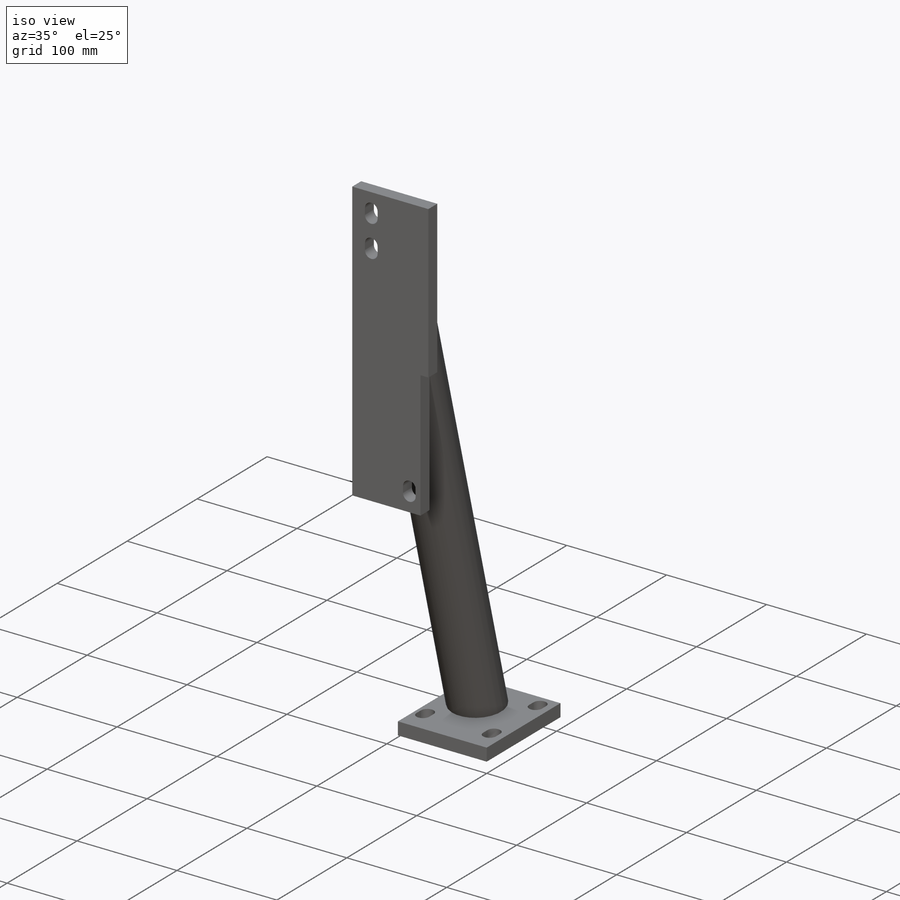
[diagram: iso view]
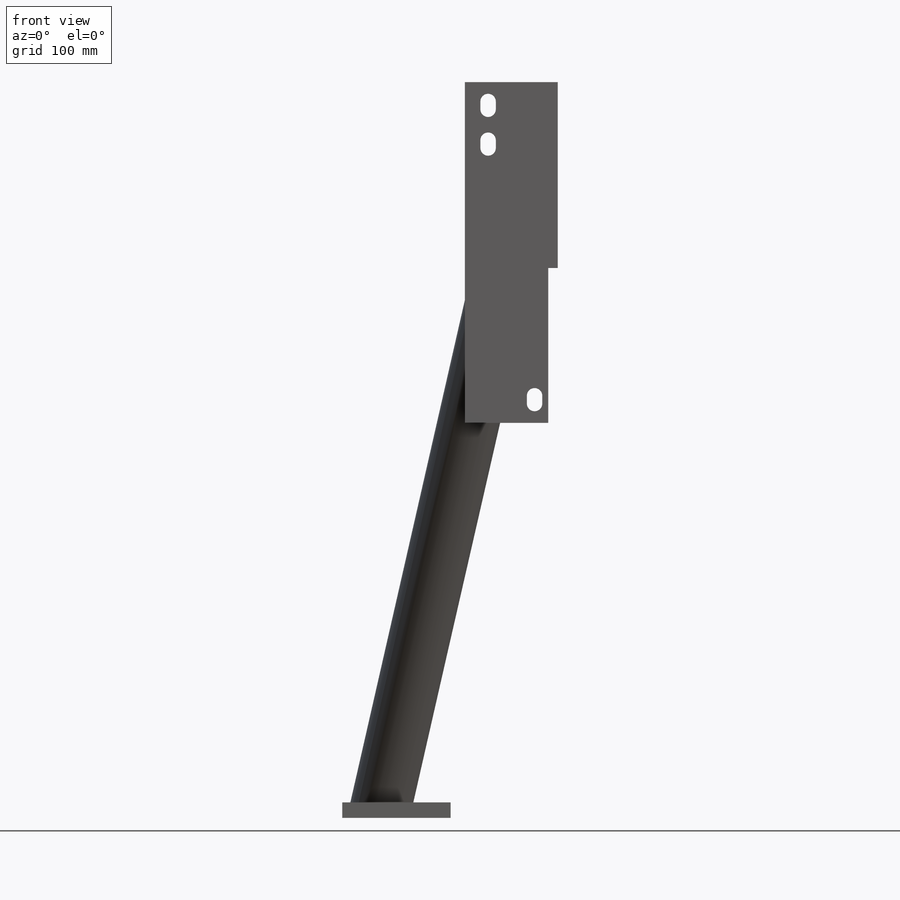
[diagram: front view]
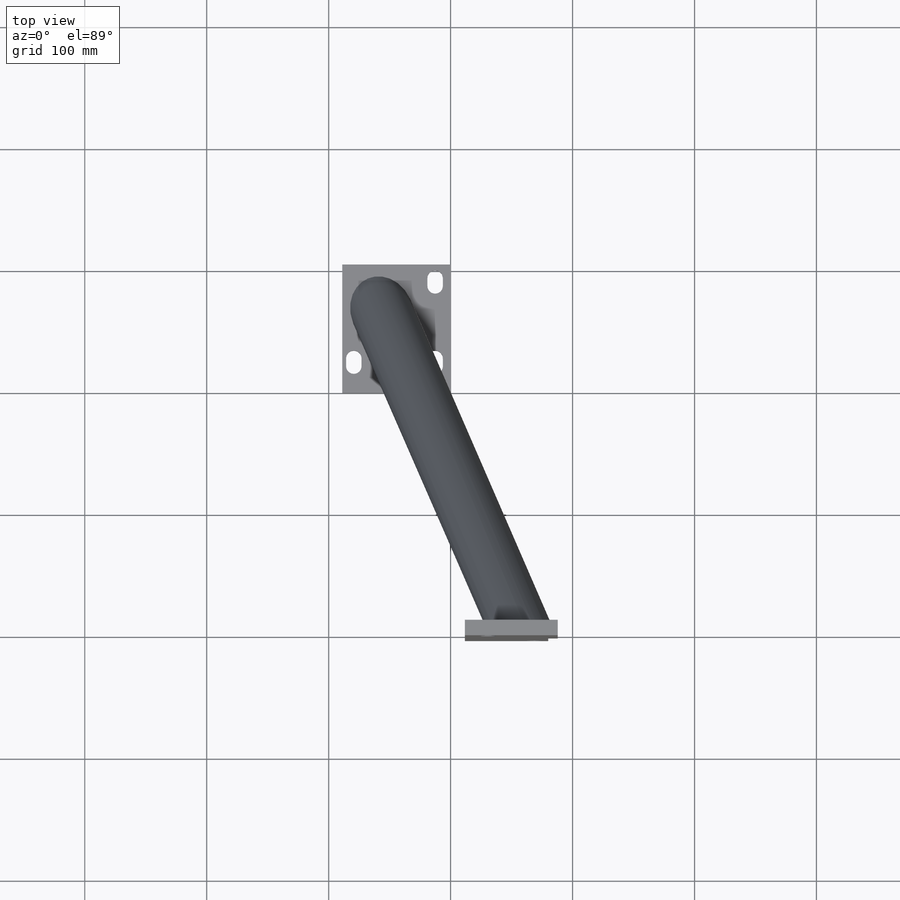
[diagram: top view]
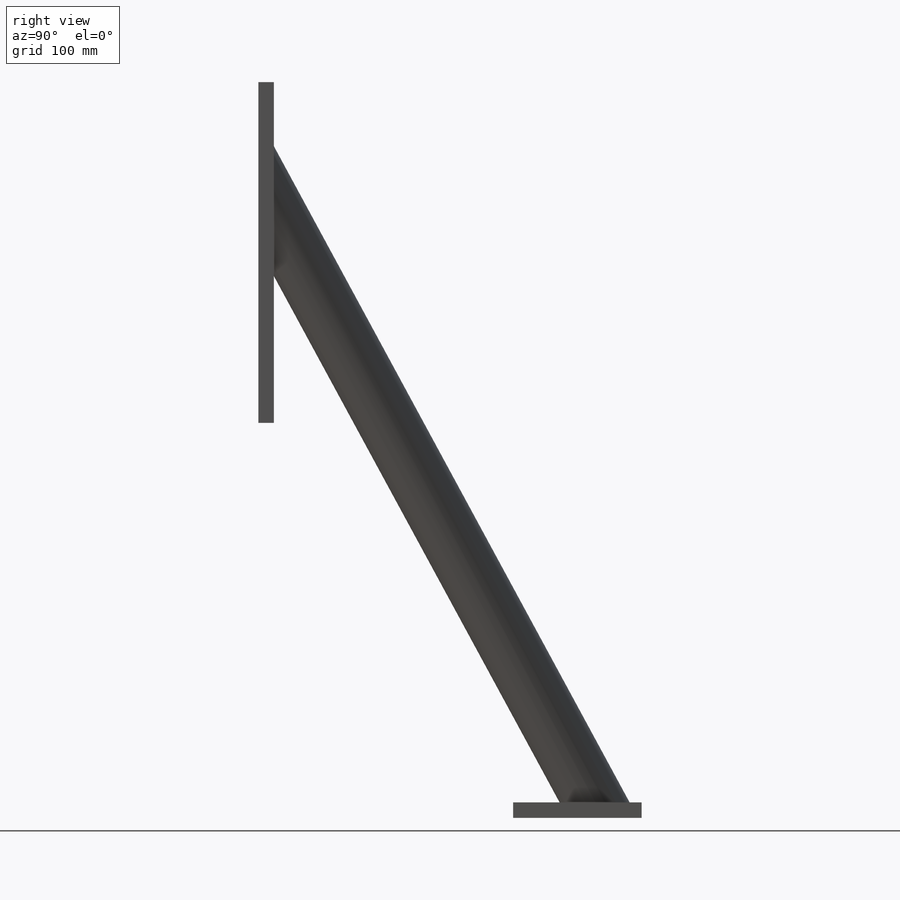
[diagram: right view]
SOLIDWORKS PART (.sldprt)
format: sldprt  version: not decoded by parser v0  size: 277,504 bytes
history: native  units: mm
features: sketch x8, extrude x3, cut_extrude x3, plane x2, material x1 + 1 further entry (+13 scaffold rows collapsed)
feature tree (31):
  scaffold x13  (default folders/planes/origin — collapsed)
  material  "ASTM A519 Steel"
  "Origin"  ID=-1
  sketch  "Sketch1"  dims[D1=88.9mm D2=105.41mm]
  extrude  "Extrude1"  Depth=12.7mm
  sketch  "Sketch2"  dims[c1.D1=9.525mm c1.D2=6.35mm c1.D3=22.098mm c1.D4=65.786mm c1.D5=12.7mm c1.D6=66.675mm c2.D3=22.098mm]
  cut_extrude  "Extrude2"  [1 undecoded]
  plane  "Plane1"  Offset=314.325mm
  sketch  "Sketch4"  dims[D1=279.4mm D2=76.2mm D3=603.25mm D4=176.784mm]
  extrude  "Extrude3"  Depth=12.7mm
  sketch  "Sketch8"  dims[D1=6.35mm D2=12.7mm D3=38.1mm D4=15.875mm D5=31.75mm D6=209.55mm D7=19.05mm]
  cut_extrude  "Extrude7"  [1 undecoded]
  sketch  "Sketch5"  dims[D1=38.608mm D2=32.512mm]
  sketch  "Sketch6"  dims[D1=105.664mm D2=33.528mm]
  plane  "Plane2"
  sketch  "Sketch7"  dims[D1=25.4mm D2=50.8mm]
  extrude  "Extrude6"  Depth=127mm
  sketch  "Sketch9"  dims[D1=7.874mm D2=127.0mm]
  cut_extrude  "Extrude8"  [1 undecoded]
decode coverage: 11 of 14 modeling features carry decoded parameters; 1 rows unclassified (native names shown)
note: 3 parameter values undecoded
summary: no parameter record found for 3 features
note: suppression state not decoded; provenance and decode notes live in map.json
